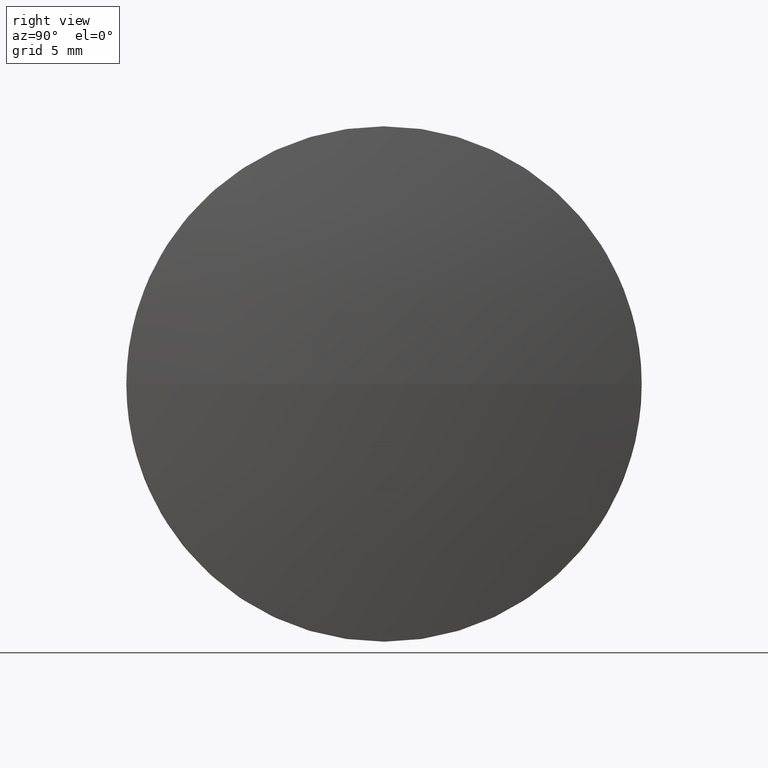
[diagram: clean part render]
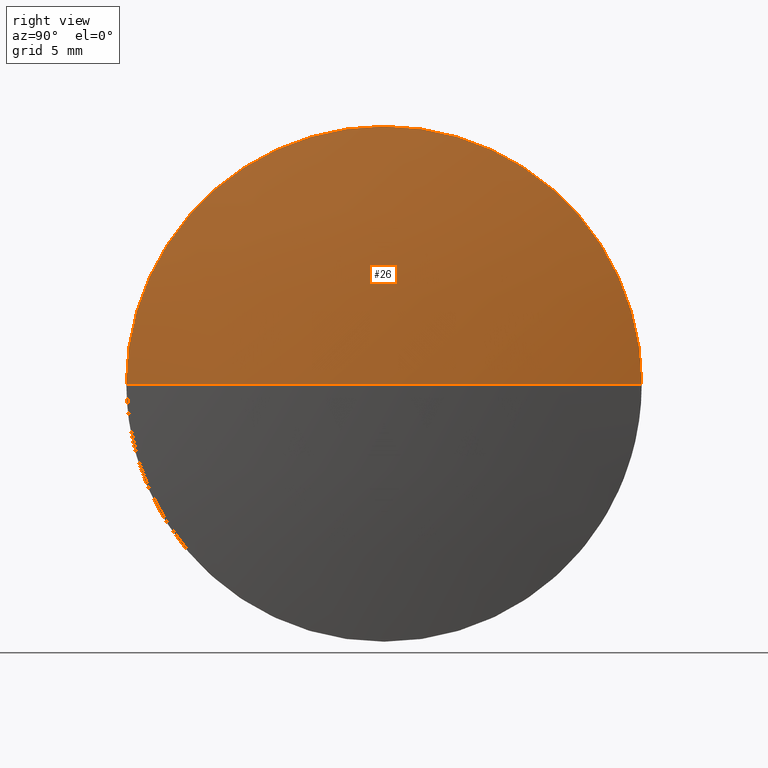
[diagram: same view with one face highlighted and labeled with its STEP entity id]
A machine part, right view. The second image highlights one B-rep face of the part: STEP entity #26.
In plain terms, the highlighted spherical surface has radius 82.7118 mm.
Its self-contained STEP definition (entity closure, byte-faithful):
#1 = CARTESIAN_POINT ( 'NONE',  ( 579.2456314118285300, 209.4790640844908600, 0.0000000000000000000 ) ) ;
#4 = CARTESIAN_POINT ( 'NONE',  ( 580.1956314118284600, 196.9790640844907400, 0.0000000000000000000 ) ) ;
#6 = SPHERICAL_SURFACE ( 'NONE', #37, 82.71184210526288900 ) ;
#7 = AXIS2_PLACEMENT_3D ( 'NONE', #159, #76, #172 ) ;
#11 = CARTESIAN_POINT ( 'NONE',  ( 579.2456314118285300, 196.9790640844909100, 0.0000000000000000000 ) ) ;
#17 = CIRCLE ( 'NONE', #27, 12.49999999999998400 ) ;
#19 = DIRECTION ( 'NONE',  ( -0.0000000000000000000, 0.0000000000000000000, -1.000000000000000000 ) ) ;
#20 = DIRECTION ( 'NONE',  ( 0.0000000000000000000, 0.0000000000000000000, 1.000000000000000000 ) ) ;
#21 = VERTEX_POINT ( 'NONE', #1 ) ;
#24 = EDGE_CURVE ( 'NONE', #56, #21, #28, .T. ) ;
#25 = AXIS2_PLACEMENT_3D ( 'NONE', #11, #179, #85 ) ;
#26 = ADVANCED_FACE ( 'NONE', ( #149 ), #6, .T. ) ;
#27 = AXIS2_PLACEMENT_3D ( 'NONE', #121, #60, #20 ) ;
#28 = CIRCLE ( 'NONE', #7, 82.71184210526288900 ) ;
#32 = CARTESIAN_POINT ( 'NONE',  ( 579.2456314118285300, 184.4790640844908300, -1.530808498934181500E-015 ) ) ;
#37 = AXIS2_PLACEMENT_3D ( 'NONE', #91, #19, #120 ) ;
#41 = ORIENTED_EDGE ( 'NONE', *, *, #163, .F. ) ;
#52 = VERTEX_POINT ( 'NONE', #140 ) ;
#56 = VERTEX_POINT ( 'NONE', #4 ) ;
#60 = DIRECTION ( 'NONE',  ( -1.000000000000000000, -0.0000000000000000000, -0.0000000000000000000 ) ) ;
#74 = EDGE_CURVE ( 'NONE', #75, #52, #17, .T. ) ;
#75 = VERTEX_POINT ( 'NONE', #32 ) ;
#76 = DIRECTION ( 'NONE',  ( -0.0000000000000000000, 0.0000000000000000000, 1.000000000000000000 ) ) ;
#79 = ORIENTED_EDGE ( 'NONE', *, *, #74, .F. ) ;
#81 = CIRCLE ( 'NONE', #25, 12.49999999999998400 ) ;
#85 = DIRECTION ( 'NONE',  ( 0.0000000000000000000, 0.0000000000000000000, 1.000000000000000000 ) ) ;
#88 = ORIENTED_EDGE ( 'NONE', *, *, #24, .T. ) ;
#90 = EDGE_LOOP ( 'NONE', ( #175, #88, #41, #79 ) ) ;
#91 = CARTESIAN_POINT ( 'NONE',  ( 497.4837893065656000, 196.9790640844907400, 0.0000000000000000000 ) ) ;
#101 = CIRCLE ( 'NONE', #129, 82.71184210526291700 ) ;
#106 = EDGE_CURVE ( 'NONE', #56, #75, #101, .T. ) ;
#112 = CARTESIAN_POINT ( 'NONE',  ( 497.4837893065656000, 196.9790640844907400, 0.0000000000000000000 ) ) ;
#120 = DIRECTION ( 'NONE',  ( 0.0000000000000000000, 1.000000000000000000, 0.0000000000000000000 ) ) ;
#121 = CARTESIAN_POINT ( 'NONE',  ( 579.2456314118285300, 196.9790640844909100, 0.0000000000000000000 ) ) ;
#127 = DIRECTION ( 'NONE',  ( 0.0000000000000000000, 1.224646799147353200E-016, -1.000000000000000000 ) ) ;
#129 = AXIS2_PLACEMENT_3D ( 'NONE', #112, #127, #152 ) ;
#140 = CARTESIAN_POINT ( 'NONE',  ( 579.2456314118285300, 196.9790640844909100, 12.49999999999998400 ) ) ;
#149 = FACE_OUTER_BOUND ( 'NONE', #90, .T. ) ;
#152 = DIRECTION ( 'NONE',  ( 0.0000000000000000000, 1.000000000000000000, 1.224646799147352700E-016 ) ) ;
#159 = CARTESIAN_POINT ( 'NONE',  ( 497.4837893065656000, 196.9790640844907400, 0.0000000000000000000 ) ) ;
#163 = EDGE_CURVE ( 'NONE', #52, #21, #81, .T. ) ;
#172 = DIRECTION ( 'NONE',  ( 1.000000000000000000, 0.0000000000000000000, 0.0000000000000000000 ) ) ;
#175 = ORIENTED_EDGE ( 'NONE', *, *, #106, .F. ) ;
#179 = DIRECTION ( 'NONE',  ( -1.000000000000000000, -0.0000000000000000000, -0.0000000000000000000 ) ) ;